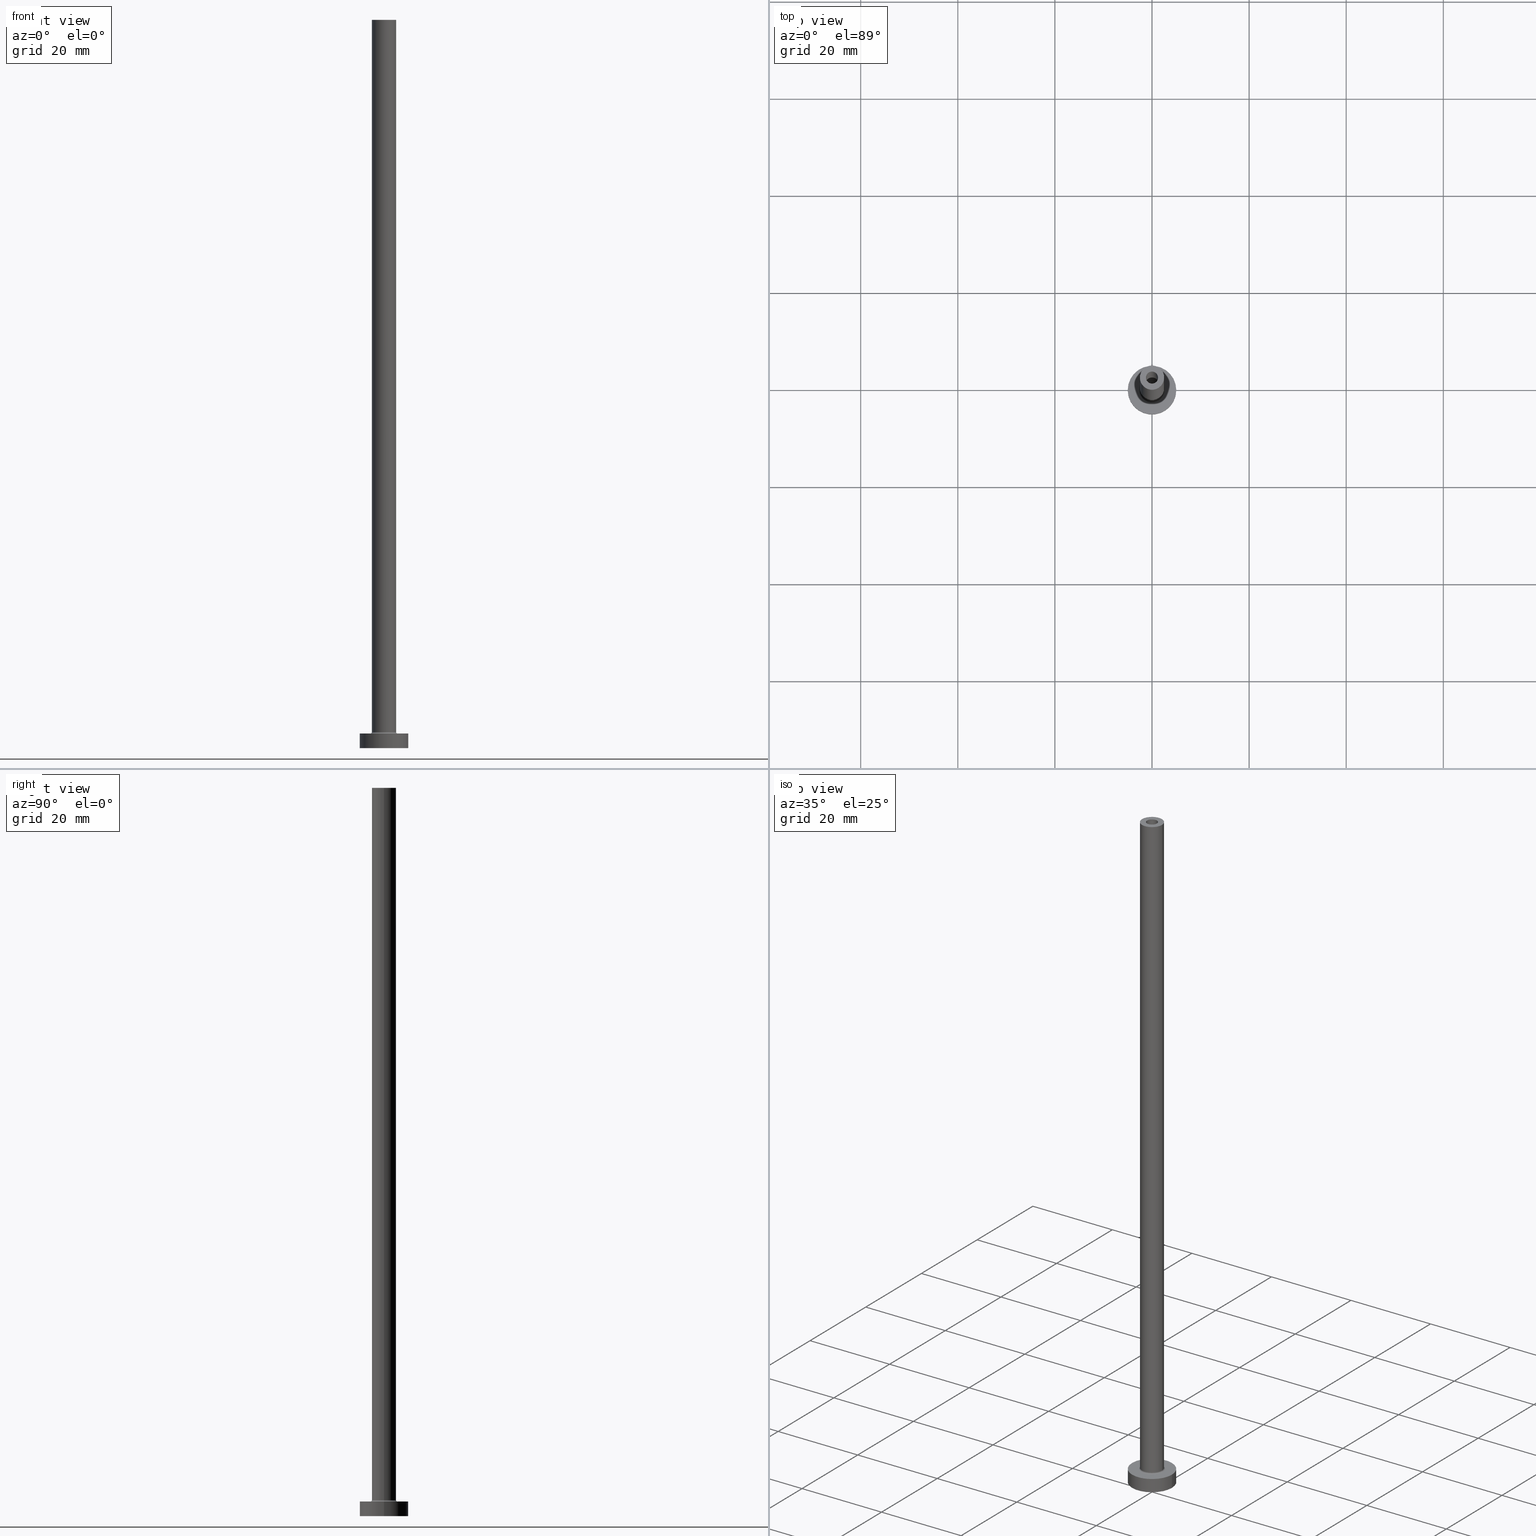
[diagram: canonical four-view strip — front | top / right | iso, engineering-drawing reading convention]
A machine part, canonical four-view strip (front | top / right | iso — engineering-drawing reading convention). The complete STEP part file that produces these views, byte-faithful:
ISO-10303-21;
HEADER;
FILE_DESCRIPTION (( 'STEP AP203' ),
    '1' );
FILE_NAME ('64fc.STEP',
    '2023-02-13T12:48:37',
    ( '' ),
    ( '' ),
    'SwSTEP 2.0',
    'SolidWorks 2019',
    '' );
FILE_SCHEMA (( 'CONFIG_CONTROL_DESIGN' ));
ENDSEC;

DATA;
#1 = CARTESIAN_POINT ( 'NONE',  ( 0.000000000000000000, 0.000000000000000000, 150.0000000000000000 ) ) ;
#2 = AXIS2_PLACEMENT_3D ( 'NONE', #60, #197, #126 ) ;
#3 = AXIS2_PLACEMENT_3D ( 'NONE', #139, #358, #349 ) ;
#4 = PERSON_AND_ORGANIZATION_ROLE ( 'design_owner' ) ;
#5 = DIRECTION ( 'NONE',  ( 0.000000000000000000, 0.000000000000000000, 1.000000000000000000 ) ) ;
#6 = EDGE_CURVE ( 'NONE', #67, #351, #92, .T. ) ;
#7 = DIRECTION ( 'NONE',  ( 0.000000000000000000, 0.000000000000000000, 1.000000000000000000 ) ) ;
#8 = PERSON_AND_ORGANIZATION ( #39, #274 ) ;
#9 = ORIENTED_EDGE ( 'NONE', *, *, #452, .T. ) ;
#10 = PERSON_AND_ORGANIZATION_ROLE ( 'creator' ) ;
#11 = TOROIDAL_SURFACE ( 'NONE', #178, 2.799999999999999822, 0.2999999999999999889 ) ;
#12 = EDGE_CURVE ( 'NONE', #344, #438, #398, .T. ) ;
#13 = PRODUCT_DEFINITION_SHAPE ( 'NONE', 'NONE',  #143 ) ;
#14 = DIRECTION ( 'NONE',  ( 0.000000000000000000, 0.000000000000000000, 1.000000000000000000 ) ) ;
#15 = VECTOR ( 'NONE', #269, 1000.000000000000000 ) ;
#16 = FACE_OUTER_BOUND ( 'NONE', #176, .T. ) ;
#17 = APPROVAL_PERSON_ORGANIZATION ( #45, #68, #257 ) ;
#18 = ORIENTED_EDGE ( 'NONE', *, *, #89, .F. ) ;
#19 = CYLINDRICAL_SURFACE ( 'NONE', #2, 1.250000000000000000 ) ;
#20 = ORIENTED_EDGE ( 'NONE', *, *, #443, .F. ) ;
#21 = CARTESIAN_POINT ( 'NONE',  ( 0.000000000000000000, 0.000000000000000000, 150.0000000000000000 ) ) ;
#22 = ORIENTED_EDGE ( 'NONE', *, *, #296, .F. ) ;
#23 = DIRECTION ( 'NONE',  ( 1.000000000000000000, 0.000000000000000000, 0.000000000000000000 ) ) ;
#24 = MANIFOLD_SOLID_BREP ( 'Odebrat vysunut�m4', #186 ) ;
#25 = EDGE_LOOP ( 'NONE', ( #316, #195, #59, #241 ) ) ;
#26 = CARTESIAN_POINT ( 'NONE',  ( 1.250000000000000000, 1.530808498934191571E-16, 150.0000000000000000 ) ) ;
#27 = ORIENTED_EDGE ( 'NONE', *, *, #310, .F. ) ;
#28 = FACE_BOUND ( 'NONE', #103, .T. ) ;
#29 = ORIENTED_EDGE ( 'NONE', *, *, #255, .T. ) ;
#30 = EDGE_CURVE ( 'NONE', #98, #308, #359, .T. ) ;
#31 = DIRECTION ( 'NONE',  ( 1.000000000000000000, 0.000000000000000000, 0.000000000000000000 ) ) ;
#32 = CIRCLE ( 'NONE', #369, 2.799999999999999822 ) ;
#33 = CYLINDRICAL_SURFACE ( 'NONE', #169, 5.000000000000000000 ) ;
#34 = VECTOR ( 'NONE', #180, 1000.000000000000000 ) ;
#35 = CARTESIAN_POINT ( 'NONE',  ( 1.250000000000000000, 1.530808498934191571E-16, 150.0000000000000000 ) ) ;
#36 = DIRECTION ( 'NONE',  ( 1.000000000000000000, 0.000000000000000000, 0.000000000000000000 ) ) ;
#37 = PERSON_AND_ORGANIZATION ( #39, #274 ) ;
#38 = DIRECTION ( 'NONE',  ( 1.000000000000000000, 0.000000000000000000, 0.000000000000000000 ) ) ;
#39 = PERSON ( 'NEUR�EN�', 'NEUR�EN�', 'NEUR�EN�', ('NEUR�EN�'), ('NEUR�EN�'), ('NEUR�EN�') ) ;
#40 = DIRECTION ( 'NONE',  ( 0.000000000000000000, 0.000000000000000000, 1.000000000000000000 ) ) ;
#41 = EDGE_CURVE ( 'NONE', #297, #308, #265, .T. ) ;
#42 = AXIS2_PLACEMENT_3D ( 'NONE', #450, #71, #424 ) ;
#43 = SECURITY_CLASSIFICATION_LEVEL ( 'unclassified' ) ;
#44 = DIRECTION ( 'NONE',  ( 0.000000000000000000, 0.000000000000000000, 1.000000000000000000 ) ) ;
#45 = PERSON_AND_ORGANIZATION ( #39, #274 ) ;
#46 = ORIENTED_EDGE ( 'NONE', *, *, #41, .F. ) ;
#47 = PERSON_AND_ORGANIZATION ( #39, #274 ) ;
#48 = ADVANCED_FACE ( 'NONE', ( #112 ), #104, .F. ) ;
#49 = ORIENTED_EDGE ( 'NONE', *, *, #416, .F. ) ;
#50 = CIRCLE ( 'NONE', #403, 1.250000000000000000 ) ;
#51 = LOCAL_TIME ( 13, 48, 37.00000000000000000, #287 ) ;
#52 = CARTESIAN_POINT ( 'NONE',  ( 0.000000000000000000, 0.000000000000000000, 114.9999999999999858 ) ) ;
#53 = DIRECTION ( 'NONE',  ( 1.000000000000000000, 0.000000000000000000, 0.000000000000000000 ) ) ;
#54 = ADVANCED_FACE ( 'NONE', ( #76 ), #249, .T. ) ;
#55 = AXIS2_PLACEMENT_3D ( 'NONE', #142, #5, #149 ) ;
#56 = CYLINDRICAL_SURFACE ( 'NONE', #117, 2.500000000000000000 ) ;
#57 = ORIENTED_EDGE ( 'NONE', *, *, #329, .F. ) ;
#58 = CARTESIAN_POINT ( 'NONE',  ( 0.000000000000000000, 0.000000000000000000, 3.299999999999997158 ) ) ;
#59 = ORIENTED_EDGE ( 'NONE', *, *, #194, .T. ) ;
#60 = CARTESIAN_POINT ( 'NONE',  ( 0.000000000000000000, 0.000000000000000000, 150.0000000000000000 ) ) ;
#61 = EDGE_CURVE ( 'NONE', #412, #252, #32, .T. ) ;
#62 = EDGE_LOOP ( 'NONE', ( #202, #46 ) ) ;
#63 = LINE ( 'NONE', #26, #295 ) ;
#64 = AXIS2_PLACEMENT_3D ( 'NONE', #21, #444, #307 ) ;
#65 = ORIENTED_EDGE ( 'NONE', *, *, #384, .F. ) ;
#66 = PLANE ( 'NONE',  #3 ) ;
#67 = VERTEX_POINT ( 'NONE', #387 ) ;
#68 = APPROVAL ( #148, 'NEUR�EN�' ) ;
#69 = CARTESIAN_POINT ( 'NONE',  ( -1.399999999999999911, 0.000000000000000000, 114.9999999999999858 ) ) ;
#70 = CARTESIAN_POINT ( 'NONE',  ( 0.000000000000000000, 0.000000000000000000, 150.0000000000000000 ) ) ;
#71 = DIRECTION ( 'NONE',  ( 0.000000000000000000, 0.000000000000000000, 1.000000000000000000 ) ) ;
#72 = DIRECTION ( 'NONE',  ( 0.000000000000000000, 0.000000000000000000, 1.000000000000000000 ) ) ;
#73 = LOCAL_TIME ( 13, 48, 37.00000000000000000, #461 ) ;
#74 = APPLICATION_CONTEXT ( 'configuration controlled 3d designs of mechanical parts and assemblies' ) ;
#75 = CARTESIAN_POINT ( 'NONE',  ( -2.799999999999999822, 3.429011037612589276E-16, 2.999999999999998668 ) ) ;
#76 = FACE_OUTER_BOUND ( 'NONE', #299, .T. ) ;
#77 = PERSON_AND_ORGANIZATION_ROLE ( 'design_supplier' ) ;
#78 = EDGE_CURVE ( 'NONE', #134, #98, #417, .T. ) ;
#79 = DIRECTION ( 'NONE',  ( 1.000000000000000000, 0.000000000000000000, 0.000000000000000000 ) ) ;
#80 = CARTESIAN_POINT ( 'NONE',  ( 5.000000000000000000, 6.123233995736766282E-16, 3.000000000000000000 ) ) ;
#81 = TOROIDAL_SURFACE ( 'NONE', #243, 2.799999999999999822, 0.2999999999999999889 ) ;
#82 = APPROVAL_STATUS ( 'not_yet_approved' ) ;
#83 = APPROVAL ( #82, 'NEUR�EN�' ) ;
#84 = DIRECTION ( 'NONE',  ( 1.000000000000000000, 0.000000000000000000, 0.000000000000000000 ) ) ;
#85 = AXIS2_PLACEMENT_3D ( 'NONE', #432, #97, #53 ) ;
#86 = AXIS2_PLACEMENT_3D ( 'NONE', #360, #215, #239 ) ;
#87 = DIRECTION ( 'NONE',  ( 1.000000000000000000, 0.000000000000000000, 0.000000000000000000 ) ) ;
#88 = LINE ( 'NONE', #338, #381 ) ;
#89 = EDGE_CURVE ( 'NONE', #347, #234, #50, .T. ) ;
#90 = DIRECTION ( 'NONE',  ( -0.000000000000000000, -0.000000000000000000, -1.000000000000000000 ) ) ;
#91 = VERTEX_POINT ( 'NONE', #389 ) ;
#92 = CIRCLE ( 'NONE', #339, 2.500000000000000000 ) ;
#93 = CYLINDRICAL_SURFACE ( 'NONE', #192, 1.399999999999999911 ) ;
#94 = SECURITY_CLASSIFICATION ( '', '', #43 ) ;
#95 = ORIENTED_EDGE ( 'NONE', *, *, #247, .F. ) ;
#96 = EDGE_CURVE ( 'NONE', #414, #91, #219, .T. ) ;
#97 = DIRECTION ( 'NONE',  ( -0.000000000000000000, -0.000000000000000000, -1.000000000000000000 ) ) ;
#98 = VERTEX_POINT ( 'NONE', #324 ) ;
#99 = CARTESIAN_POINT ( 'NONE',  ( 2.500000000000000000, 3.061616997868383141E-16, 3.299999999999997158 ) ) ;
#100 = ORIENTED_EDGE ( 'NONE', *, *, #41, .T. ) ;
#101 = FACE_OUTER_BOUND ( 'NONE', #379, .T. ) ;
#102 = AXIS2_PLACEMENT_3D ( 'NONE', #413, #135, #392 ) ;
#103 = EDGE_LOOP ( 'NONE', ( #230, #385 ) ) ;
#104 = CYLINDRICAL_SURFACE ( 'NONE', #251, 1.250000000000000000 ) ;
#105 = CARTESIAN_POINT ( 'NONE',  ( 0.000000000000000000, 0.000000000000000000, 3.299999999999997158 ) ) ;
#106 = DIRECTION ( 'NONE',  ( 1.000000000000000000, 0.000000000000000000, 0.000000000000000000 ) ) ;
#107 = PLANE ( 'NONE',  #280 ) ;
#108 = AXIS2_PLACEMENT_3D ( 'NONE', #188, #284, #114 ) ;
#109 = DIRECTION ( 'NONE',  ( -1.000000000000000000, 0.000000000000000000, 0.000000000000000000 ) ) ;
#110 = AXIS2_PLACEMENT_3D ( 'NONE', #221, #175, #421 ) ;
#111 = APPROVAL_DATE_TIME ( #325, #270 ) ;
#112 = FACE_OUTER_BOUND ( 'NONE', #132, .T. ) ;
#113 = APPROVAL_ROLE ( '' ) ;
#114 = DIRECTION ( 'NONE',  ( 1.000000000000000000, 0.000000000000000000, 0.000000000000000000 ) ) ;
#115 = FACE_OUTER_BOUND ( 'NONE', #341, .T. ) ;
#116 = EDGE_CURVE ( 'NONE', #91, #414, #312, .T. ) ;
#117 = AXIS2_PLACEMENT_3D ( 'NONE', #345, #203, #411 ) ;
#118 = CIRCLE ( 'NONE', #86, 1.399999999999999911 ) ;
#119 = PERSON_AND_ORGANIZATION ( #39, #274 ) ;
#120 = APPROVAL_DATE_TIME ( #328, #83 ) ;
#121 = AXIS2_PLACEMENT_3D ( 'NONE', #52, #405, #300 ) ;
#122 = ADVANCED_FACE ( 'NONE', ( #292 ), #429, .T. ) ;
#123 = CARTESIAN_POINT ( 'NONE',  ( 1.399999999999999911, 1.714505518806294145E-16, 114.9999999999999858 ) ) ;
#124 = CARTESIAN_POINT ( 'NONE',  ( 1.399999999999999911, 1.714505518806294145E-16, 118.9597979746446441 ) ) ;
#125 = ORIENTED_EDGE ( 'NONE', *, *, #6, .T. ) ;
#126 = DIRECTION ( 'NONE',  ( -1.000000000000000000, 0.000000000000000000, 0.000000000000000000 ) ) ;
#127 = ORIENTED_EDGE ( 'NONE', *, *, #30, .F. ) ;
#128 = AXIS2_PLACEMENT_3D ( 'NONE', #161, #14, #23 ) ;
#129 = PLANE ( 'NONE',  #64 ) ;
#130 = ORIENTED_EDGE ( 'NONE', *, *, #136, .T. ) ;
#131 = CARTESIAN_POINT ( 'NONE',  ( -1.250000000000000000, 0.000000000000000000, 150.0000000000000000 ) ) ;
#132 = EDGE_LOOP ( 'NONE', ( #418, #9, #18, #20 ) ) ;
#133 =( NAMED_UNIT ( * ) PLANE_ANGLE_UNIT ( ) SI_UNIT ( $, .RADIAN. ) );
#134 = VERTEX_POINT ( 'NONE', #80 ) ;
#135 = DIRECTION ( 'NONE',  ( 0.000000000000000000, 0.000000000000000000, 1.000000000000000000 ) ) ;
#136 = EDGE_CURVE ( 'NONE', #98, #134, #455, .T. ) ;
#137 = AXIS2_PLACEMENT_3D ( 'NONE', #293, #205, #232 ) ;
#138 = ORIENTED_EDGE ( 'NONE', *, *, #337, .T. ) ;
#139 = CARTESIAN_POINT ( 'NONE',  ( 0.000000000000000000, 0.000000000000000000, 0.000000000000000000 ) ) ;
#140 = DIRECTION ( 'NONE',  ( 1.000000000000000000, 0.000000000000000000, 0.000000000000000000 ) ) ;
#141 = DIRECTION ( 'NONE',  ( 0.000000000000000000, 0.000000000000000000, 1.000000000000000000 ) ) ;
#142 = CARTESIAN_POINT ( 'NONE',  ( 0.000000000000000000, 0.000000000000000000, 3.299999999999997158 ) ) ;
#143 = PRODUCT_DEFINITION ( 'NEZN�M�', '', #199, #150 ) ;
#144 = APPROVAL_DATE_TIME ( #433, #68 ) ;
#145 = VECTOR ( 'NONE', #201, 1000.000000000000000 ) ;
#146 = VECTOR ( 'NONE', #163, 1000.000000000000000 ) ;
#147 = CARTESIAN_POINT ( 'NONE',  ( 0.000000000000000000, 0.000000000000000000, 150.0000000000000000 ) ) ;
#148 = APPROVAL_STATUS ( 'not_yet_approved' ) ;
#149 = DIRECTION ( 'NONE',  ( 1.000000000000000000, 0.000000000000000000, 0.000000000000000000 ) ) ;
#150 = DESIGN_CONTEXT ( 'detailed design', #350, 'design' ) ;
#151 = DIRECTION ( 'NONE',  ( 1.000000000000000000, 0.000000000000000000, 0.000000000000000000 ) ) ;
#152 = DATE_TIME_ROLE ( 'classification_date' ) ;
#153 = ORIENTED_EDGE ( 'NONE', *, *, #164, .T. ) ;
#154 = CC_DESIGN_APPROVAL ( #270, ( #94 ) ) ;
#155 = ORIENTED_EDGE ( 'NONE', *, *, #384, .T. ) ;
#156 = ADVANCED_FACE ( 'NONE', ( #355 ), #33, .T. ) ;
#157 = CARTESIAN_POINT ( 'NONE',  ( 2.799999999999999822, 0.000000000000000000, 2.999999999999998668 ) ) ;
#158 = ORIENTED_EDGE ( 'NONE', *, *, #96, .T. ) ;
#159 = AXIS2_PLACEMENT_3D ( 'NONE', #460, #286, #109 ) ;
#160 = LOCAL_TIME ( 13, 48, 37.00000000000000000, #223 ) ;
#161 = CARTESIAN_POINT ( 'NONE',  ( 0.000000000000000000, 0.000000000000000000, 150.0000000000000000 ) ) ;
#162 = EDGE_LOOP ( 'NONE', ( #334, #436, #321, #214 ) ) ;
#163 = DIRECTION ( 'NONE',  ( -0.000000000000000000, -0.000000000000000000, -1.000000000000000000 ) ) ;
#164 = EDGE_CURVE ( 'NONE', #238, #410, #258, .T. ) ;
#165 = ORIENTED_EDGE ( 'NONE', *, *, #407, .T. ) ;
#166 = CARTESIAN_POINT ( 'NONE',  ( -1.399999999999999911, 0.000000000000000000, 118.9597979746446441 ) ) ;
#167 = ORIENTED_EDGE ( 'NONE', *, *, #61, .T. ) ;
#168 = ADVANCED_BREP_SHAPE_REPRESENTATION ( '64fc', ( #24, #390 ), #419 ) ;
#169 = AXIS2_PLACEMENT_3D ( 'NONE', #179, #318, #458 ) ;
#170 = FACE_OUTER_BOUND ( 'NONE', #62, .T. ) ;
#171 = EDGE_LOOP ( 'NONE', ( #335, #167 ) ) ;
#172 =( LENGTH_UNIT ( ) NAMED_UNIT ( * ) SI_UNIT ( .MILLI., .METRE. ) );
#173 = EDGE_LOOP ( 'NONE', ( #311, #57 ) ) ;
#174 = ADVANCED_FACE ( 'NONE', ( #320 ), #182, .F. ) ;
#175 = DIRECTION ( 'NONE',  ( 1.224646799147353207E-16, 1.000000000000000000, -0.000000000000000000 ) ) ;
#176 = EDGE_LOOP ( 'NONE', ( #65, #212, #29, #449 ) ) ;
#177 = LINE ( 'NONE', #131, #333 ) ;
#178 = AXIS2_PLACEMENT_3D ( 'NONE', #58, #378, #264 ) ;
#179 = CARTESIAN_POINT ( 'NONE',  ( 0.000000000000000000, 0.000000000000000000, 3.000000000000000000 ) ) ;
#180 = DIRECTION ( 'NONE',  ( -0.000000000000000000, -0.000000000000000000, -1.000000000000000000 ) ) ;
#181 = ADVANCED_FACE ( 'NONE', ( #446, #309 ), #129, .T. ) ;
#182 = CYLINDRICAL_SURFACE ( 'NONE', #159, 1.399999999999999911 ) ;
#183 = APPLICATION_PROTOCOL_DEFINITION ( 'international standard', 'config_control_design', 1994, #350 ) ;
#184 = DIRECTION ( 'NONE',  ( -0.000000000000000000, -0.000000000000000000, -1.000000000000000000 ) ) ;
#185 = APPLICATION_PROTOCOL_DEFINITION ( 'international standard', 'config_control_design', 1994, #74 ) ;
#186 = CLOSED_SHELL ( 'NONE', ( #48, #174, #262, #122, #54, #156, #354, #431, #211, #181, #366, #290, #343, #281 ) ) ;
#187 = CC_DESIGN_SECURITY_CLASSIFICATION ( #94, ( #199 ) ) ;
#188 = CARTESIAN_POINT ( 'NONE',  ( 0.000000000000000000, 0.000000000000000000, 3.299999999999997158 ) ) ;
#189 = DIRECTION ( 'NONE',  ( -0.000000000000000000, -0.000000000000000000, -1.000000000000000000 ) ) ;
#190 = PERSON_AND_ORGANIZATION ( #39, #274 ) ;
#191 = ORIENTED_EDGE ( 'NONE', *, *, #136, .F. ) ;
#192 = AXIS2_PLACEMENT_3D ( 'NONE', #376, #404, #370 ) ;
#193 = EDGE_LOOP ( 'NONE', ( #22, #49 ) ) ;
#194 = EDGE_CURVE ( 'NONE', #414, #252, #225, .T. ) ;
#195 = ORIENTED_EDGE ( 'NONE', *, *, #96, .F. ) ;
#196 = CARTESIAN_POINT ( 'NONE',  ( -2.500000000000000000, 0.000000000000000000, 150.0000000000000000 ) ) ;
#197 = DIRECTION ( 'NONE',  ( 0.000000000000000000, 0.000000000000000000, -1.000000000000000000 ) ) ;
#198 = VECTOR ( 'NONE', #393, 1000.000000000000000 ) ;
#199 = PRODUCT_DEFINITION_FORMATION_WITH_SPECIFIED_SOURCE ( 'LIBOVOLN�', '', #260, .NOT_KNOWN. ) ;
#200 = EDGE_CURVE ( 'NONE', #382, #238, #275, .T. ) ;
#201 = DIRECTION ( 'NONE',  ( 0.000000000000000000, 0.000000000000000000, -1.000000000000000000 ) ) ;
#202 = ORIENTED_EDGE ( 'NONE', *, *, #371, .F. ) ;
#203 = DIRECTION ( 'NONE',  ( -0.000000000000000000, -0.000000000000000000, -1.000000000000000000 ) ) ;
#204 = ORIENTED_EDGE ( 'NONE', *, *, #6, .F. ) ;
#205 = DIRECTION ( 'NONE',  ( 0.000000000000000000, -1.000000000000000000, 0.000000000000000000 ) ) ;
#206 = ORIENTED_EDGE ( 'NONE', *, *, #322, .F. ) ;
#207 = CIRCLE ( 'NONE', #128, 1.250000000000000000 ) ;
#208 = CIRCLE ( 'NONE', #42, 5.000000000000000000 ) ;
#209 = CARTESIAN_POINT ( 'NONE',  ( 2.500000000000000000, 3.061616997868383141E-16, 150.0000000000000000 ) ) ;
#210 = APPROVAL_PERSON_ORGANIZATION ( #47, #270, #401 ) ;
#211 = ADVANCED_FACE ( 'NONE', ( #16 ), #56, .T. ) ;
#212 = ORIENTED_EDGE ( 'NONE', *, *, #337, .F. ) ;
#213 = DIRECTION ( 'NONE',  ( 0.000000000000000000, 0.000000000000000000, -1.000000000000000000 ) ) ;
#214 = ORIENTED_EDGE ( 'NONE', *, *, #217, .F. ) ;
#215 = DIRECTION ( 'NONE',  ( 0.000000000000000000, 0.000000000000000000, 1.000000000000000000 ) ) ;
#216 = DIRECTION ( 'NONE',  ( 1.000000000000000000, 0.000000000000000000, 0.000000000000000000 ) ) ;
#217 = EDGE_CURVE ( 'NONE', #234, #347, #323, .T. ) ;
#218 = FACE_BOUND ( 'NONE', #173, .T. ) ;
#219 = CIRCLE ( 'NONE', #108, 2.500000000000000000 ) ;
#220 = DIRECTION ( 'NONE',  ( -0.000000000000000000, -0.000000000000000000, -1.000000000000000000 ) ) ;
#221 = CARTESIAN_POINT ( 'NONE',  ( -2.799999999999999822, 3.429011037612588783E-16, 3.299999999999997158 ) ) ;
#222 = CARTESIAN_POINT ( 'NONE',  ( 0.000000000000000000, 0.000000000000000000, 3.000000000000000000 ) ) ;
#223 = COORDINATED_UNIVERSAL_TIME_OFFSET ( 1, 0, .AHEAD. ) ;
#224 = DIRECTION ( 'NONE',  ( -1.000000000000000000, 0.000000000000000000, 0.000000000000000000 ) ) ;
#225 = CIRCLE ( 'NONE', #137, 0.2999999999999999334 ) ;
#226 = CARTESIAN_POINT ( 'NONE',  ( -5.000000000000000000, 0.000000000000000000, 3.000000000000000000 ) ) ;
#227 = CC_DESIGN_PERSON_AND_ORGANIZATION_ASSIGNMENT ( #119, #229, ( #94 ) ) ;
#228 = CALENDAR_DATE ( 2023, 13, 2 ) ;
#229 = PERSON_AND_ORGANIZATION_ROLE ( 'classification_officer' ) ;
#230 = ORIENTED_EDGE ( 'NONE', *, *, #89, .T. ) ;
#231 = EDGE_CURVE ( 'NONE', #438, #344, #207, .T. ) ;
#232 = DIRECTION ( 'NONE',  ( 0.000000000000000000, 0.000000000000000000, -1.000000000000000000 ) ) ;
#233 = DIRECTION ( 'NONE',  ( 1.000000000000000000, 0.000000000000000000, 0.000000000000000000 ) ) ;
#234 = VERTEX_POINT ( 'NONE', #336 ) ;
#235 = APPROVAL_PERSON_ORGANIZATION ( #37, #83, #113 ) ;
#236 = LINE ( 'NONE', #196, #146 ) ;
#237 = EDGE_LOOP ( 'NONE', ( #278, #315 ) ) ;
#238 = VERTEX_POINT ( 'NONE', #372 ) ;
#239 = DIRECTION ( 'NONE',  ( 1.000000000000000000, 0.000000000000000000, 0.000000000000000000 ) ) ;
#240 = CC_DESIGN_PERSON_AND_ORGANIZATION_ASSIGNMENT ( #254, #77, ( #199 ) ) ;
#241 = ORIENTED_EDGE ( 'NONE', *, *, #61, .F. ) ;
#242 = CIRCLE ( 'NONE', #301, 2.500000000000000000 ) ;
#243 = AXIS2_PLACEMENT_3D ( 'NONE', #105, #250, #31 ) ;
#244 = DIRECTION ( 'NONE',  ( 1.000000000000000000, 0.000000000000000000, -0.000000000000000000 ) ) ;
#245 = ORIENTED_EDGE ( 'NONE', *, *, #296, .T. ) ;
#246 = DIRECTION ( 'NONE',  ( 0.000000000000000000, 0.000000000000000000, 1.000000000000000000 ) ) ;
#247 = EDGE_CURVE ( 'NONE', #252, #412, #288, .T. ) ;
#248 = CARTESIAN_POINT ( 'NONE',  ( 1.399999999999999911, 1.714505518806294145E-16, 0.000000000000000000 ) ) ;
#249 = CYLINDRICAL_SURFACE ( 'NONE', #434, 5.000000000000000000 ) ;
#250 = DIRECTION ( 'NONE',  ( 0.000000000000000000, 0.000000000000000000, 1.000000000000000000 ) ) ;
#251 = AXIS2_PLACEMENT_3D ( 'NONE', #147, #365, #224 ) ;
#252 = VERTEX_POINT ( 'NONE', #157 ) ;
#253 = CARTESIAN_POINT ( 'NONE',  ( 0.000000000000000000, 0.000000000000000000, 3.000000000000000000 ) ) ;
#254 = PERSON_AND_ORGANIZATION ( #39, #274 ) ;
#255 = EDGE_CURVE ( 'NONE', #351, #91, #236, .T. ) ;
#256 = DIRECTION ( 'NONE',  ( -0.000000000000000000, -0.000000000000000000, -1.000000000000000000 ) ) ;
#257 = APPROVAL_ROLE ( '' ) ;
#258 = CIRCLE ( 'NONE', #332, 1.399999999999999911 ) ;
#259 = CALENDAR_DATE ( 2023, 13, 2 ) ;
#260 = PRODUCT ( '64fc', '64fc', '', ( #291 ) ) ;
#261 = ORIENTED_EDGE ( 'NONE', *, *, #194, .F. ) ;
#262 = ADVANCED_FACE ( 'NONE', ( #115 ), #11, .F. ) ;
#263 = APPROVAL_STATUS ( 'not_yet_approved' ) ;
#264 = DIRECTION ( 'NONE',  ( 1.000000000000000000, 0.000000000000000000, 0.000000000000000000 ) ) ;
#265 = CIRCLE ( 'NONE', #447, 5.000000000000000000 ) ;
#266 = LOCAL_TIME ( 13, 48, 37.00000000000000000, #298 ) ;
#267 = CARTESIAN_POINT ( 'NONE',  ( -5.000000000000000000, 0.000000000000000000, 0.000000000000000000 ) ) ;
#268 = ORIENTED_EDGE ( 'NONE', *, *, #416, .T. ) ;
#269 = DIRECTION ( 'NONE',  ( 0.000000000000000000, 0.000000000000000000, -1.000000000000000000 ) ) ;
#270 = APPROVAL ( #263, 'NEUR�EN�' ) ;
#271 = FACE_OUTER_BOUND ( 'NONE', #162, .T. ) ;
#272 = EDGE_LOOP ( 'NONE', ( #27, #191, #314, #375 ) ) ;
#273 = AXIS2_PLACEMENT_3D ( 'NONE', #1, #7, #151 ) ;
#274 = ORGANIZATION ( 'NEUR�EN�', 'NEUR�EN�', '' ) ;
#275 = LINE ( 'NONE', #166, #145 ) ;
#276 = ORIENTED_EDGE ( 'NONE', *, *, #255, .F. ) ;
#277 = FACE_OUTER_BOUND ( 'NONE', #193, .T. ) ;
#278 = ORIENTED_EDGE ( 'NONE', *, *, #12, .F. ) ;
#279 = EDGE_LOOP ( 'NONE', ( #138, #125 ) ) ;
#280 = AXIS2_PLACEMENT_3D ( 'NONE', #313, #141, #244 ) ;
#281 = ADVANCED_FACE ( 'NONE', ( #271 ), #19, .F. ) ;
#282 = EDGE_LOOP ( 'NONE', ( #245, #451, #400, #303 ) ) ;
#283 = CARTESIAN_POINT ( 'NONE',  ( -1.250000000000000000, 0.000000000000000000, 150.0000000000000000 ) ) ;
#284 = DIRECTION ( 'NONE',  ( 0.000000000000000000, 0.000000000000000000, 1.000000000000000000 ) ) ;
#285 = FACE_OUTER_BOUND ( 'NONE', #25, .T. ) ;
#286 = DIRECTION ( 'NONE',  ( 0.000000000000000000, 0.000000000000000000, -1.000000000000000000 ) ) ;
#287 = COORDINATED_UNIVERSAL_TIME_OFFSET ( 1, 0, .AHEAD. ) ;
#288 = CIRCLE ( 'NONE', #85, 2.799999999999999822 ) ;
#289 = DIRECTION ( 'NONE',  ( -1.000000000000000000, 0.000000000000000000, 0.000000000000000000 ) ) ;
#290 = ADVANCED_FACE ( 'NONE', ( #340 ), #93, .F. ) ;
#291 = MECHANICAL_CONTEXT ( 'NONE', #74, 'mechanical' ) ;
#292 = FACE_OUTER_BOUND ( 'NONE', #453, .T. ) ;
#293 = CARTESIAN_POINT ( 'NONE',  ( 2.799999999999999822, 0.000000000000000000, 3.299999999999997158 ) ) ;
#294 = CALENDAR_DATE ( 2023, 13, 2 ) ;
#295 = VECTOR ( 'NONE', #454, 1000.000000000000000 ) ;
#296 = EDGE_CURVE ( 'NONE', #382, #306, #348, .T. ) ;
#297 = VERTEX_POINT ( 'NONE', #440 ) ;
#298 = COORDINATED_UNIVERSAL_TIME_OFFSET ( 1, 0, .AHEAD. ) ;
#299 = EDGE_LOOP ( 'NONE', ( #445, #330, #100, #127 ) ) ;
#300 = DIRECTION ( 'NONE',  ( 1.000000000000000000, 0.000000000000000000, 0.000000000000000000 ) ) ;
#301 = AXIS2_PLACEMENT_3D ( 'NONE', #373, #386, #380 ) ;
#302 = CC_DESIGN_APPROVAL ( #68, ( #143 ) ) ;
#303 = ORIENTED_EDGE ( 'NONE', *, *, #200, .F. ) ;
#304 = CC_DESIGN_DATE_AND_TIME_ASSIGNMENT ( #399, #435, ( #143 ) ) ;
#305 = DIRECTION ( 'NONE',  ( -0.000000000000000000, -0.000000000000000000, -1.000000000000000000 ) ) ;
#306 = VERTEX_POINT ( 'NONE', #123 ) ;
#307 = DIRECTION ( 'NONE',  ( 1.000000000000000000, 0.000000000000000000, -0.000000000000000000 ) ) ;
#308 = VERTEX_POINT ( 'NONE', #267 ) ;
#309 = FACE_OUTER_BOUND ( 'NONE', #279, .T. ) ;
#310 = EDGE_CURVE ( 'NONE', #134, #297, #88, .T. ) ;
#311 = ORIENTED_EDGE ( 'NONE', *, *, #164, .F. ) ;
#312 = CIRCLE ( 'NONE', #55, 2.500000000000000000 ) ;
#313 = CARTESIAN_POINT ( 'NONE',  ( 0.000000000000000000, 0.000000000000000000, 3.000000000000000000 ) ) ;
#314 = ORIENTED_EDGE ( 'NONE', *, *, #30, .T. ) ;
#315 = ORIENTED_EDGE ( 'NONE', *, *, #231, .F. ) ;
#316 = ORIENTED_EDGE ( 'NONE', *, *, #407, .F. ) ;
#317 = CC_DESIGN_APPROVAL ( #83, ( #199 ) ) ;
#318 = DIRECTION ( 'NONE',  ( -0.000000000000000000, -0.000000000000000000, -1.000000000000000000 ) ) ;
#319 = CARTESIAN_POINT ( 'NONE',  ( -2.500000000000000000, 0.000000000000000000, 150.0000000000000000 ) ) ;
#320 = FACE_OUTER_BOUND ( 'NONE', #282, .T. ) ;
#321 = ORIENTED_EDGE ( 'NONE', *, *, #443, .T. ) ;
#322 = EDGE_CURVE ( 'NONE', #306, #410, #442, .T. ) ;
#323 = CIRCLE ( 'NONE', #374, 1.250000000000000000 ) ;
#324 = CARTESIAN_POINT ( 'NONE',  ( -5.000000000000000000, 0.000000000000000000, 3.000000000000000000 ) ) ;
#325 = DATE_AND_TIME ( #259, #160 ) ;
#326 = UNCERTAINTY_MEASURE_WITH_UNIT (LENGTH_MEASURE( 1.000000000000000082E-05 ), #172, 'distance_accuracy_value', 'NONE');
#327 = CARTESIAN_POINT ( 'NONE',  ( 0.000000000000000000, 0.000000000000000000, 3.000000000000000000 ) ) ;
#328 = DATE_AND_TIME ( #228, #51 ) ;
#329 = EDGE_CURVE ( 'NONE', #410, #238, #439, .T. ) ;
#330 = ORIENTED_EDGE ( 'NONE', *, *, #310, .T. ) ;
#331 = CALENDAR_DATE ( 2023, 13, 2 ) ;
#332 = AXIS2_PLACEMENT_3D ( 'NONE', #422, #220, #36 ) ;
#333 = VECTOR ( 'NONE', #213, 1000.000000000000000 ) ;
#334 = ORIENTED_EDGE ( 'NONE', *, *, #452, .F. ) ;
#335 = ORIENTED_EDGE ( 'NONE', *, *, #247, .T. ) ;
#336 = CARTESIAN_POINT ( 'NONE',  ( 1.250000000000000000, 1.530808498934191571E-16, 114.9999999999999858 ) ) ;
#337 = EDGE_CURVE ( 'NONE', #351, #67, #242, .T. ) ;
#338 = CARTESIAN_POINT ( 'NONE',  ( 5.000000000000000000, 6.123233995736766282E-16, 3.000000000000000000 ) ) ;
#339 = AXIS2_PLACEMENT_3D ( 'NONE', #361, #246, #79 ) ;
#340 = FACE_OUTER_BOUND ( 'NONE', #377, .T. ) ;
#341 = EDGE_LOOP ( 'NONE', ( #456, #165, #95, #261 ) ) ;
#342 = CARTESIAN_POINT ( 'NONE',  ( 0.000000000000000000, 0.000000000000000000, 114.9999999999999858 ) ) ;
#343 = ADVANCED_FACE ( 'NONE', ( #28, #277 ), #388, .F. ) ;
#344 = VERTEX_POINT ( 'NONE', #283 ) ;
#345 = CARTESIAN_POINT ( 'NONE',  ( 0.000000000000000000, 0.000000000000000000, 150.0000000000000000 ) ) ;
#346 = AXIS2_PLACEMENT_3D ( 'NONE', #327, #72, #216 ) ;
#347 = VERTEX_POINT ( 'NONE', #459 ) ;
#348 = CIRCLE ( 'NONE', #121, 1.399999999999999911 ) ;
#349 = DIRECTION ( 'NONE',  ( 1.000000000000000000, 0.000000000000000000, -0.000000000000000000 ) ) ;
#350 = APPLICATION_CONTEXT ( 'configuration controlled 3d designs of mechanical parts and assemblies' ) ;
#351 = VERTEX_POINT ( 'NONE', #319 ) ;
#352 =( NAMED_UNIT ( * ) SI_UNIT ( $, .STERADIAN. ) SOLID_ANGLE_UNIT ( ) );
#353 = ORIENTED_EDGE ( 'NONE', *, *, #200, .T. ) ;
#354 = ADVANCED_FACE ( 'NONE', ( #415, #101 ), #107, .T. ) ;
#355 = FACE_OUTER_BOUND ( 'NONE', #272, .T. ) ;
#356 = AXIS2_PLACEMENT_3D ( 'NONE', #70, #189, #396 ) ;
#357 = LOCAL_TIME ( 13, 48, 37.00000000000000000, #430 ) ;
#358 = DIRECTION ( 'NONE',  ( 0.000000000000000000, 0.000000000000000000, 1.000000000000000000 ) ) ;
#359 = LINE ( 'NONE', #226, #198 ) ;
#360 = CARTESIAN_POINT ( 'NONE',  ( 0.000000000000000000, 0.000000000000000000, 114.9999999999999858 ) ) ;
#361 = CARTESIAN_POINT ( 'NONE',  ( 0.000000000000000000, 0.000000000000000000, 150.0000000000000000 ) ) ;
#362 = CARTESIAN_POINT ( 'NONE',  ( 0.000000000000000000, 0.000000000000000000, 114.9999999999999858 ) ) ;
#363 = CARTESIAN_POINT ( 'NONE',  ( 0.000000000000000000, 0.000000000000000000, 0.000000000000000000 ) ) ;
#364 = AXIS2_PLACEMENT_3D ( 'NONE', #253, #44, #425 ) ;
#365 = DIRECTION ( 'NONE',  ( 0.000000000000000000, 0.000000000000000000, -1.000000000000000000 ) ) ;
#366 = ADVANCED_FACE ( 'NONE', ( #285 ), #81, .F. ) ;
#367 = PERSON_AND_ORGANIZATION ( #39, #274 ) ;
#368 = DATE_AND_TIME ( #426, #357 ) ;
#369 = AXIS2_PLACEMENT_3D ( 'NONE', #427, #256, #38 ) ;
#370 = DIRECTION ( 'NONE',  ( -1.000000000000000000, 0.000000000000000000, 0.000000000000000000 ) ) ;
#371 = EDGE_CURVE ( 'NONE', #308, #297, #208, .T. ) ;
#372 = CARTESIAN_POINT ( 'NONE',  ( -1.399999999999999911, 0.000000000000000000, 0.000000000000000000 ) ) ;
#373 = CARTESIAN_POINT ( 'NONE',  ( 0.000000000000000000, 0.000000000000000000, 150.0000000000000000 ) ) ;
#374 = AXIS2_PLACEMENT_3D ( 'NONE', #342, #408, #87 ) ;
#375 = ORIENTED_EDGE ( 'NONE', *, *, #371, .T. ) ;
#376 = CARTESIAN_POINT ( 'NONE',  ( 0.000000000000000000, 0.000000000000000000, 118.9597979746446441 ) ) ;
#377 = EDGE_LOOP ( 'NONE', ( #206, #268, #353, #153 ) ) ;
#378 = DIRECTION ( 'NONE',  ( 0.000000000000000000, 0.000000000000000000, 1.000000000000000000 ) ) ;
#379 = EDGE_LOOP ( 'NONE', ( #130, #441 ) ) ;
#380 = DIRECTION ( 'NONE',  ( 1.000000000000000000, 0.000000000000000000, 0.000000000000000000 ) ) ;
#381 = VECTOR ( 'NONE', #305, 1000.000000000000000 ) ;
#382 = VERTEX_POINT ( 'NONE', #69 ) ;
#383 = LINE ( 'NONE', #209, #34 ) ;
#384 = EDGE_CURVE ( 'NONE', #67, #414, #383, .T. ) ;
#385 = ORIENTED_EDGE ( 'NONE', *, *, #217, .T. ) ;
#386 = DIRECTION ( 'NONE',  ( 0.000000000000000000, 0.000000000000000000, 1.000000000000000000 ) ) ;
#387 = CARTESIAN_POINT ( 'NONE',  ( 2.500000000000000000, 3.061616997868383141E-16, 150.0000000000000000 ) ) ;
#388 = PLANE ( 'NONE',  #102 ) ;
#389 = CARTESIAN_POINT ( 'NONE',  ( -2.500000000000000000, 0.000000000000000000, 3.299999999999997158 ) ) ;
#390 = AXIS2_PLACEMENT_3D ( 'NONE', #363, #397, #84 ) ;
#391 = CC_DESIGN_PERSON_AND_ORGANIZATION_ASSIGNMENT ( #367, #4, ( #260 ) ) ;
#392 = DIRECTION ( 'NONE',  ( 1.000000000000000000, 0.000000000000000000, -0.000000000000000000 ) ) ;
#393 = DIRECTION ( 'NONE',  ( -0.000000000000000000, -0.000000000000000000, -1.000000000000000000 ) ) ;
#394 = SHAPE_DEFINITION_REPRESENTATION ( #13, #168 ) ;
#395 = DIRECTION ( 'NONE',  ( 0.000000000000000000, 0.000000000000000000, 1.000000000000000000 ) ) ;
#396 = DIRECTION ( 'NONE',  ( -1.000000000000000000, 0.000000000000000000, 0.000000000000000000 ) ) ;
#397 = DIRECTION ( 'NONE',  ( 0.000000000000000000, 0.000000000000000000, 1.000000000000000000 ) ) ;
#398 = CIRCLE ( 'NONE', #273, 1.250000000000000000 ) ;
#399 = DATE_AND_TIME ( #294, #266 ) ;
#400 = ORIENTED_EDGE ( 'NONE', *, *, #329, .T. ) ;
#401 = APPROVAL_ROLE ( '' ) ;
#402 = CC_DESIGN_PERSON_AND_ORGANIZATION_ASSIGNMENT ( #190, #10, ( #143 ) ) ;
#403 = AXIS2_PLACEMENT_3D ( 'NONE', #362, #40, #106 ) ;
#404 = DIRECTION ( 'NONE',  ( 0.000000000000000000, 0.000000000000000000, -1.000000000000000000 ) ) ;
#405 = DIRECTION ( 'NONE',  ( 0.000000000000000000, 0.000000000000000000, 1.000000000000000000 ) ) ;
#406 = CARTESIAN_POINT ( 'NONE',  ( 0.000000000000000000, 0.000000000000000000, 0.000000000000000000 ) ) ;
#407 = EDGE_CURVE ( 'NONE', #91, #412, #448, .T. ) ;
#408 = DIRECTION ( 'NONE',  ( 0.000000000000000000, 0.000000000000000000, 1.000000000000000000 ) ) ;
#409 = AXIS2_PLACEMENT_3D ( 'NONE', #406, #90, #233 ) ;
#410 = VERTEX_POINT ( 'NONE', #248 ) ;
#411 = DIRECTION ( 'NONE',  ( -1.000000000000000000, 0.000000000000000000, 0.000000000000000000 ) ) ;
#412 = VERTEX_POINT ( 'NONE', #75 ) ;
#413 = CARTESIAN_POINT ( 'NONE',  ( 0.000000000000000000, 0.000000000000000000, 114.9999999999999858 ) ) ;
#414 = VERTEX_POINT ( 'NONE', #99 ) ;
#415 = FACE_BOUND ( 'NONE', #171, .T. ) ;
#416 = EDGE_CURVE ( 'NONE', #306, #382, #118, .T. ) ;
#417 = CIRCLE ( 'NONE', #364, 5.000000000000000000 ) ;
#418 = ORIENTED_EDGE ( 'NONE', *, *, #12, .T. ) ;
#419 =( GEOMETRIC_REPRESENTATION_CONTEXT ( 3 ) GLOBAL_UNCERTAINTY_ASSIGNED_CONTEXT ( ( #326 ) ) GLOBAL_UNIT_ASSIGNED_CONTEXT ( ( #172, #133, #352 ) ) REPRESENTATION_CONTEXT ( 'NONE', 'WORKASPACE' ) );
#420 = CARTESIAN_POINT ( 'NONE',  ( 0.000000000000000000, 0.000000000000000000, 0.000000000000000000 ) ) ;
#421 = DIRECTION ( 'NONE',  ( -1.000000000000000000, 1.224646799147353207E-16, 0.000000000000000000 ) ) ;
#422 = CARTESIAN_POINT ( 'NONE',  ( 0.000000000000000000, 0.000000000000000000, 0.000000000000000000 ) ) ;
#423 = CC_DESIGN_PERSON_AND_ORGANIZATION_ASSIGNMENT ( #8, #428, ( #199 ) ) ;
#424 = DIRECTION ( 'NONE',  ( 1.000000000000000000, 0.000000000000000000, 0.000000000000000000 ) ) ;
#425 = DIRECTION ( 'NONE',  ( 1.000000000000000000, 0.000000000000000000, 0.000000000000000000 ) ) ;
#426 = CALENDAR_DATE ( 2023, 13, 2 ) ;
#427 = CARTESIAN_POINT ( 'NONE',  ( 0.000000000000000000, 0.000000000000000000, 3.000000000000000000 ) ) ;
#428 = PERSON_AND_ORGANIZATION_ROLE ( 'creator' ) ;
#429 = CYLINDRICAL_SURFACE ( 'NONE', #356, 2.500000000000000000 ) ;
#430 = COORDINATED_UNIVERSAL_TIME_OFFSET ( 1, 0, .AHEAD. ) ;
#431 = ADVANCED_FACE ( 'NONE', ( #218, #170 ), #66, .F. ) ;
#432 = CARTESIAN_POINT ( 'NONE',  ( 0.000000000000000000, 0.000000000000000000, 3.000000000000000000 ) ) ;
#433 = DATE_AND_TIME ( #331, #73 ) ;
#434 = AXIS2_PLACEMENT_3D ( 'NONE', #222, #184, #289 ) ;
#435 = DATE_TIME_ROLE ( 'creation_date' ) ;
#436 = ORIENTED_EDGE ( 'NONE', *, *, #231, .T. ) ;
#437 = CC_DESIGN_DATE_AND_TIME_ASSIGNMENT ( #368, #152, ( #94 ) ) ;
#438 = VERTEX_POINT ( 'NONE', #35 ) ;
#439 = CIRCLE ( 'NONE', #409, 1.399999999999999911 ) ;
#440 = CARTESIAN_POINT ( 'NONE',  ( 5.000000000000000000, 6.123233995736766282E-16, 0.000000000000000000 ) ) ;
#441 = ORIENTED_EDGE ( 'NONE', *, *, #78, .T. ) ;
#442 = LINE ( 'NONE', #124, #15 ) ;
#443 = EDGE_CURVE ( 'NONE', #344, #347, #177, .T. ) ;
#444 = DIRECTION ( 'NONE',  ( 0.000000000000000000, 0.000000000000000000, 1.000000000000000000 ) ) ;
#445 = ORIENTED_EDGE ( 'NONE', *, *, #78, .F. ) ;
#446 = FACE_BOUND ( 'NONE', #237, .T. ) ;
#447 = AXIS2_PLACEMENT_3D ( 'NONE', #420, #395, #140 ) ;
#448 = CIRCLE ( 'NONE', #110, 0.2999999999999999334 ) ;
#449 = ORIENTED_EDGE ( 'NONE', *, *, #116, .T. ) ;
#450 = CARTESIAN_POINT ( 'NONE',  ( 0.000000000000000000, 0.000000000000000000, 0.000000000000000000 ) ) ;
#451 = ORIENTED_EDGE ( 'NONE', *, *, #322, .T. ) ;
#452 = EDGE_CURVE ( 'NONE', #438, #234, #63, .T. ) ;
#453 = EDGE_LOOP ( 'NONE', ( #204, #155, #158, #276 ) ) ;
#454 = DIRECTION ( 'NONE',  ( 0.000000000000000000, 0.000000000000000000, -1.000000000000000000 ) ) ;
#455 = CIRCLE ( 'NONE', #346, 5.000000000000000000 ) ;
#456 = ORIENTED_EDGE ( 'NONE', *, *, #116, .F. ) ;
#457 = PRODUCT_RELATED_PRODUCT_CATEGORY ( 'detail', '', ( #260 ) ) ;
#458 = DIRECTION ( 'NONE',  ( -1.000000000000000000, 0.000000000000000000, 0.000000000000000000 ) ) ;
#459 = CARTESIAN_POINT ( 'NONE',  ( -1.250000000000000000, 0.000000000000000000, 114.9999999999999858 ) ) ;
#460 = CARTESIAN_POINT ( 'NONE',  ( 0.000000000000000000, 0.000000000000000000, 118.9597979746446441 ) ) ;
#461 = COORDINATED_UNIVERSAL_TIME_OFFSET ( 1, 0, .AHEAD. ) ;
ENDSEC;
END-ISO-10303-21;
